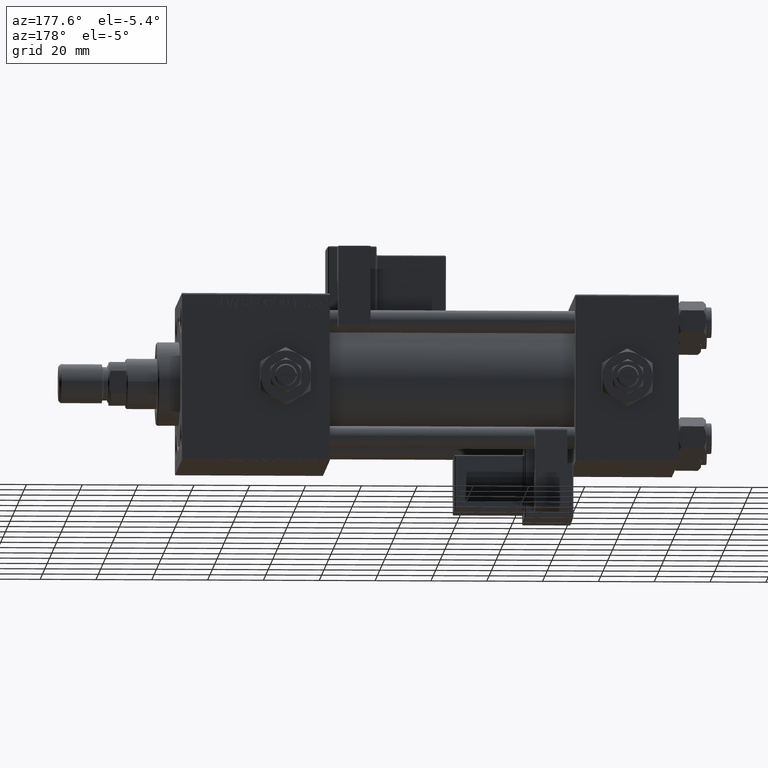
[diagram: clean part render]
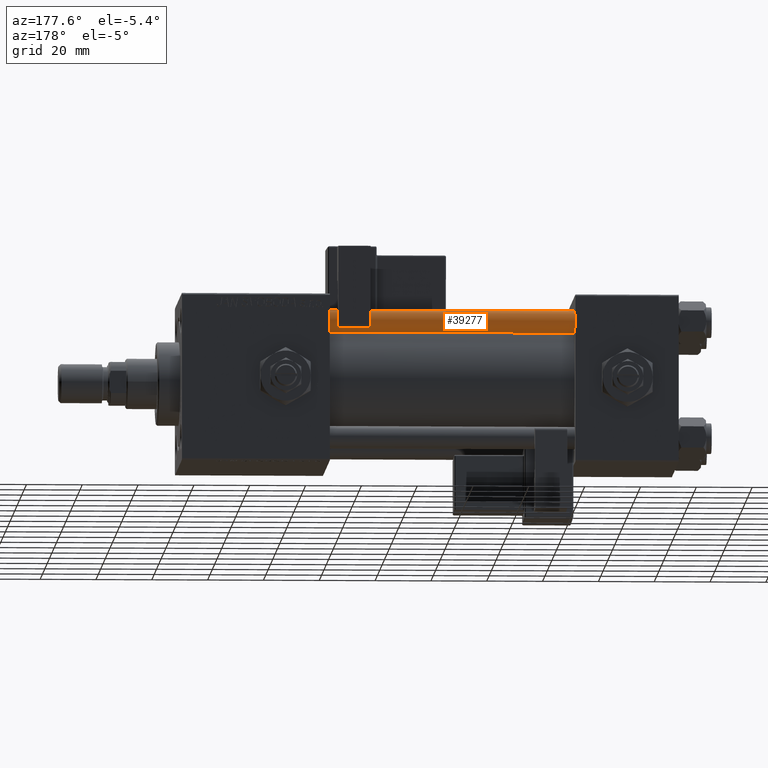
[diagram: same view with one face highlighted and labeled with its STEP entity id]
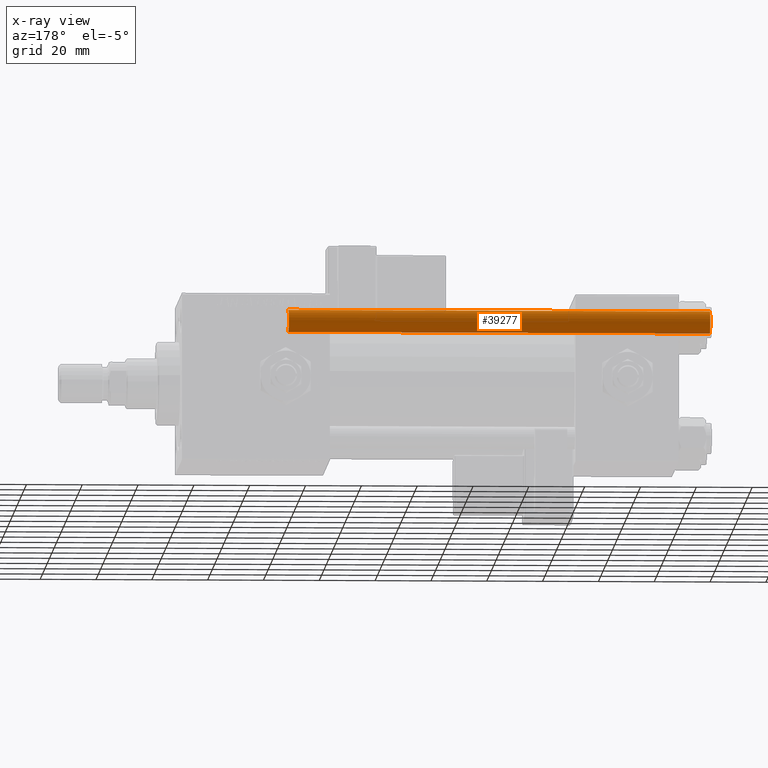
[diagram: x-ray of the same camera — body ghosted, the highlighted face saturated]
A machine part, auxiliary view. The second image highlights one B-rep face of the part: STEP entity #39277.
The next image is the same camera in x-ray: the body ghosted, the highlighted face saturated — about 0% of this face is hidden behind the body in this view.
In plain terms, the highlighted cylindrical surface (edge-blend (fillet) strip) has radius 4 mm, axis along (-1, 0, 0).
Its self-contained STEP definition (entity closure, byte-faithful):
#1456 = EDGE_CURVE ( 'NONE', #5844, #49787, #9246, .T. ) ;
#2806 = CIRCLE ( 'NONE', #15232, 4.000000000000000000 ) ;
#5564 = CARTESIAN_POINT ( 'NONE',  ( 0.000000000000000000, 0.000000000000000000, 0.5000000000000281997 ) ) ;
#5844 = VERTEX_POINT ( 'NONE', #30014 ) ;
#6034 = VECTOR ( 'NONE', #43162, 1000.000000000000000 ) ;
#6214 = AXIS2_PLACEMENT_3D ( 'NONE', #27662, #25819, #14327 ) ;
#6639 = CIRCLE ( 'NONE', #35062, 4.000000000000000000 ) ;
#7362 = DIRECTION ( 'NONE',  ( -0.000000000000000000, -0.000000000000000000, -1.000000000000000000 ) ) ;
#8543 = EDGE_LOOP ( 'NONE', ( #20282, #30614, #45021, #24067 ) ) ;
#9246 = LINE ( 'NONE', #25957, #6034 ) ;
#11520 = LINE ( 'NONE', #23499, #54555 ) ;
#14327 = DIRECTION ( 'NONE',  ( -1.000000000000000000, 0.000000000000000000, 0.000000000000000000 ) ) ;
#14861 = FACE_OUTER_BOUND ( 'NONE', #8543, .T. ) ;
#15232 = AXIS2_PLACEMENT_3D ( 'NONE', #37923, #16251, #33764 ) ;
#16251 = DIRECTION ( 'NONE',  ( 0.000000000000000000, 0.000000000000000000, -1.000000000000000000 ) ) ;
#16513 = EDGE_CURVE ( 'NONE', #5844, #54571, #2806, .T. ) ;
#20282 = ORIENTED_EDGE ( 'NONE', *, *, #16513, .T. ) ;
#22780 = DIRECTION ( 'NONE',  ( 1.000000000000000000, 0.000000000000000000, 0.000000000000000000 ) ) ;
#23061 = DIRECTION ( 'NONE',  ( -0.000000000000000000, -0.000000000000000000, 1.000000000000000000 ) ) ;
#23499 = CARTESIAN_POINT ( 'NONE',  ( 4.000000000000000000, 4.898587196589412829E-16, 152.0000000000000000 ) ) ;
#24067 = ORIENTED_EDGE ( 'NONE', *, *, #1456, .F. ) ;
#25219 = CARTESIAN_POINT ( 'NONE',  ( -4.000000000000000000, 0.000000000000000000, 0.5000000000000281997 ) ) ;
#25819 = DIRECTION ( 'NONE',  ( -0.000000000000000000, -0.000000000000000000, -1.000000000000000000 ) ) ;
#25957 = CARTESIAN_POINT ( 'NONE',  ( -4.000000000000000000, 0.000000000000000000, 152.0000000000000000 ) ) ;
#27662 = CARTESIAN_POINT ( 'NONE',  ( 0.000000000000000000, 0.000000000000000000, 152.0000000000000000 ) ) ;
#27693 = EDGE_CURVE ( 'NONE', #54571, #33343, #11520, .T. ) ;
#28559 = EDGE_CURVE ( 'NONE', #33343, #49787, #6639, .T. ) ;
#29720 = CARTESIAN_POINT ( 'NONE',  ( 4.000000000000000000, 4.898587196589412829E-16, 0.5000000000000281997 ) ) ;
#30014 = CARTESIAN_POINT ( 'NONE',  ( -4.000000000000000000, 0.000000000000000000, 151.5000000000000284 ) ) ;
#30088 = CARTESIAN_POINT ( 'NONE',  ( 4.000000000000000000, 4.898587196589412829E-16, 151.5000000000000284 ) ) ;
#30614 = ORIENTED_EDGE ( 'NONE', *, *, #27693, .T. ) ;
#33343 = VERTEX_POINT ( 'NONE', #29720 ) ;
#33764 = DIRECTION ( 'NONE',  ( 1.000000000000000000, 0.000000000000000000, 0.000000000000000000 ) ) ;
#35062 = AXIS2_PLACEMENT_3D ( 'NONE', #5564, #23061, #22780 ) ;
#37923 = CARTESIAN_POINT ( 'NONE',  ( 0.000000000000000000, 0.000000000000000000, 151.5000000000000284 ) ) ;
#39277 = ADVANCED_FACE ( 'NONE', ( #14861 ), #48217, .T. ) ;
#43162 = DIRECTION ( 'NONE',  ( -0.000000000000000000, -0.000000000000000000, -1.000000000000000000 ) ) ;
#45021 = ORIENTED_EDGE ( 'NONE', *, *, #28559, .T. ) ;
#48217 = CYLINDRICAL_SURFACE ( 'NONE', #6214, 4.000000000000000000 ) ;
#49787 = VERTEX_POINT ( 'NONE', #25219 ) ;
#54555 = VECTOR ( 'NONE', #7362, 1000.000000000000000 ) ;
#54571 = VERTEX_POINT ( 'NONE', #30088 ) ;